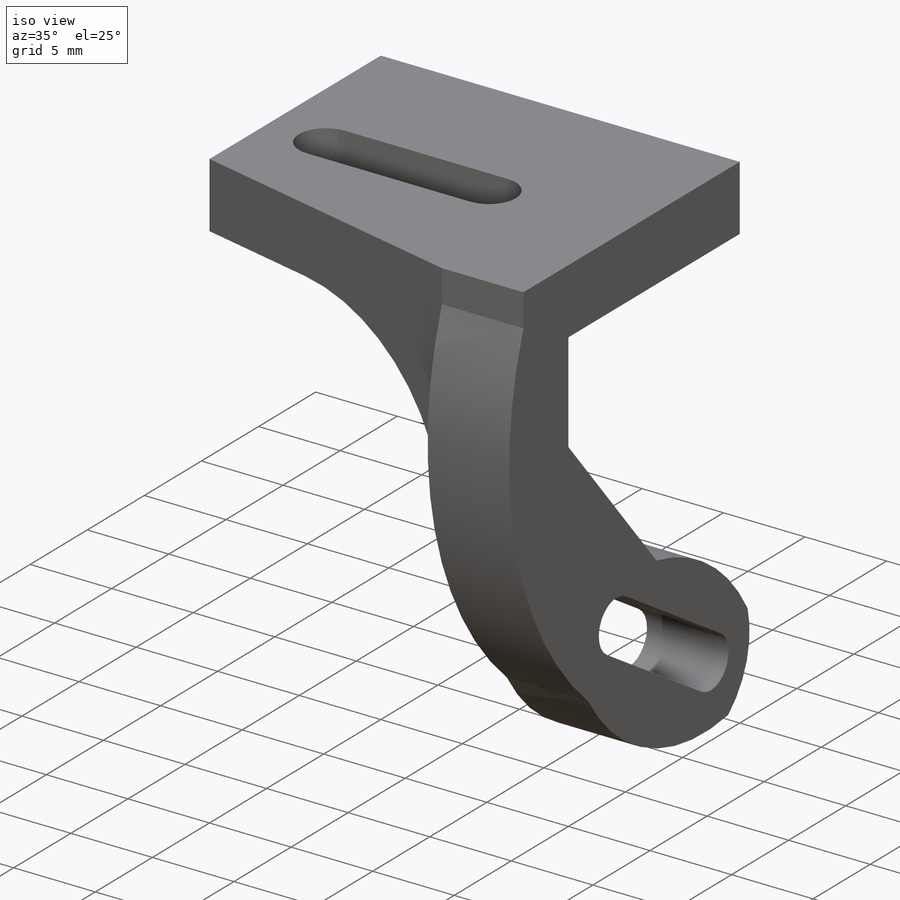
[diagram: iso view]
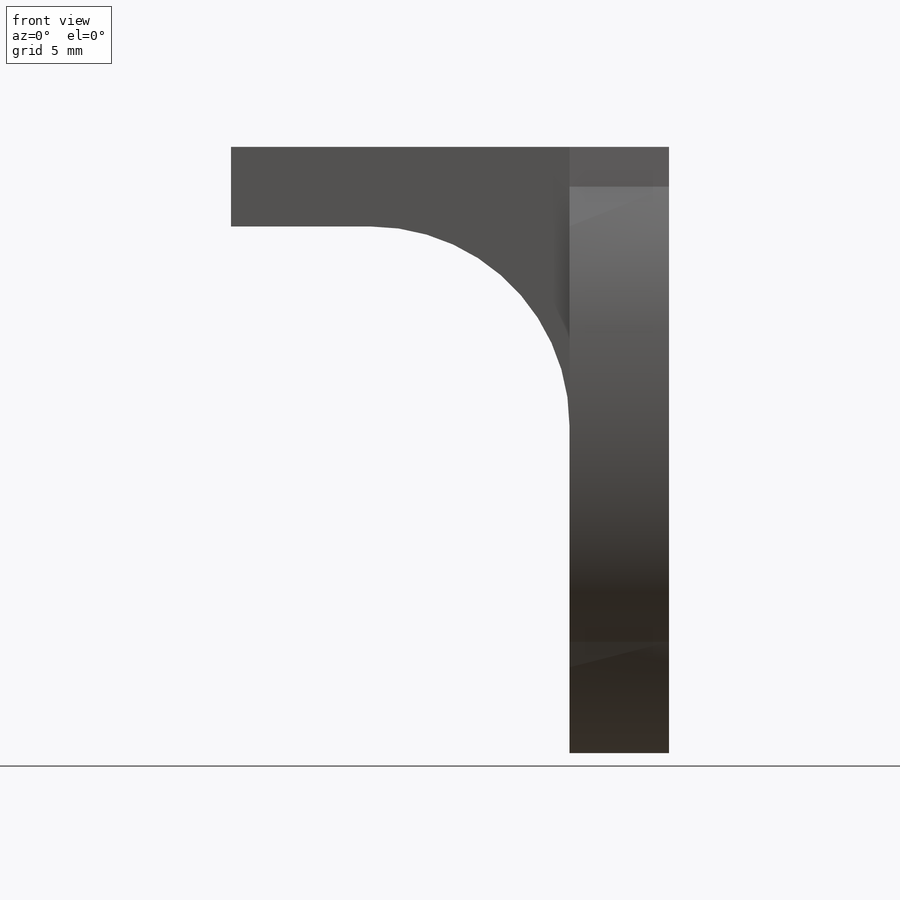
[diagram: front view]
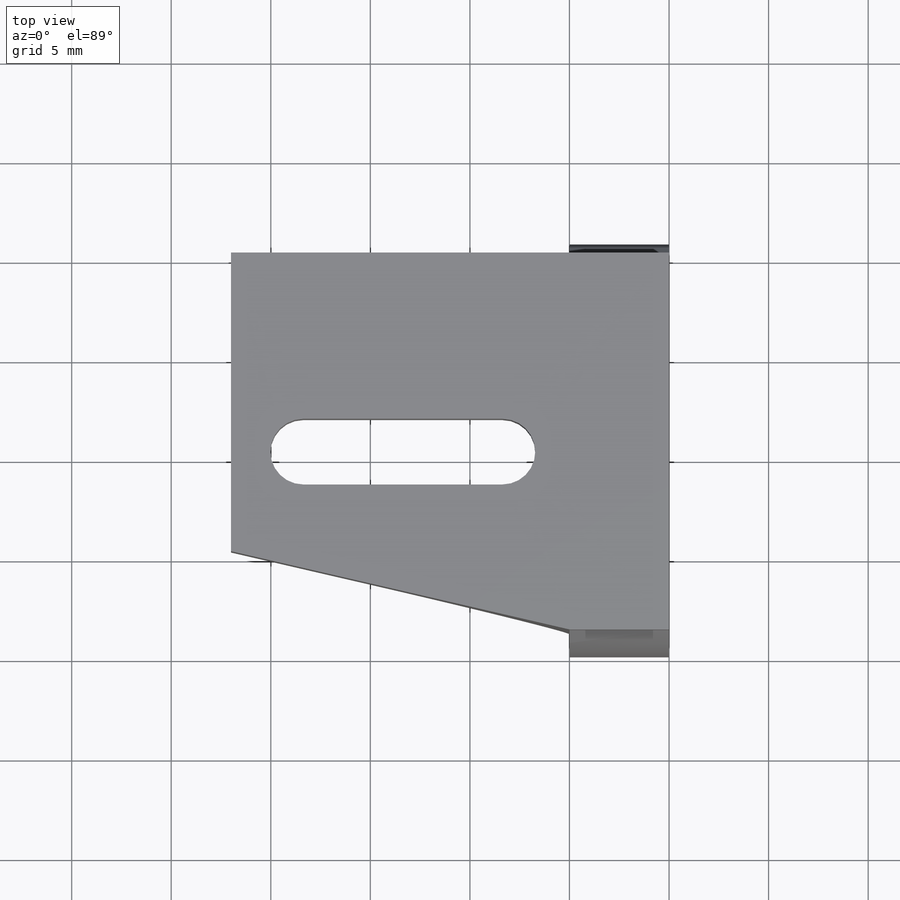
[diagram: top view]
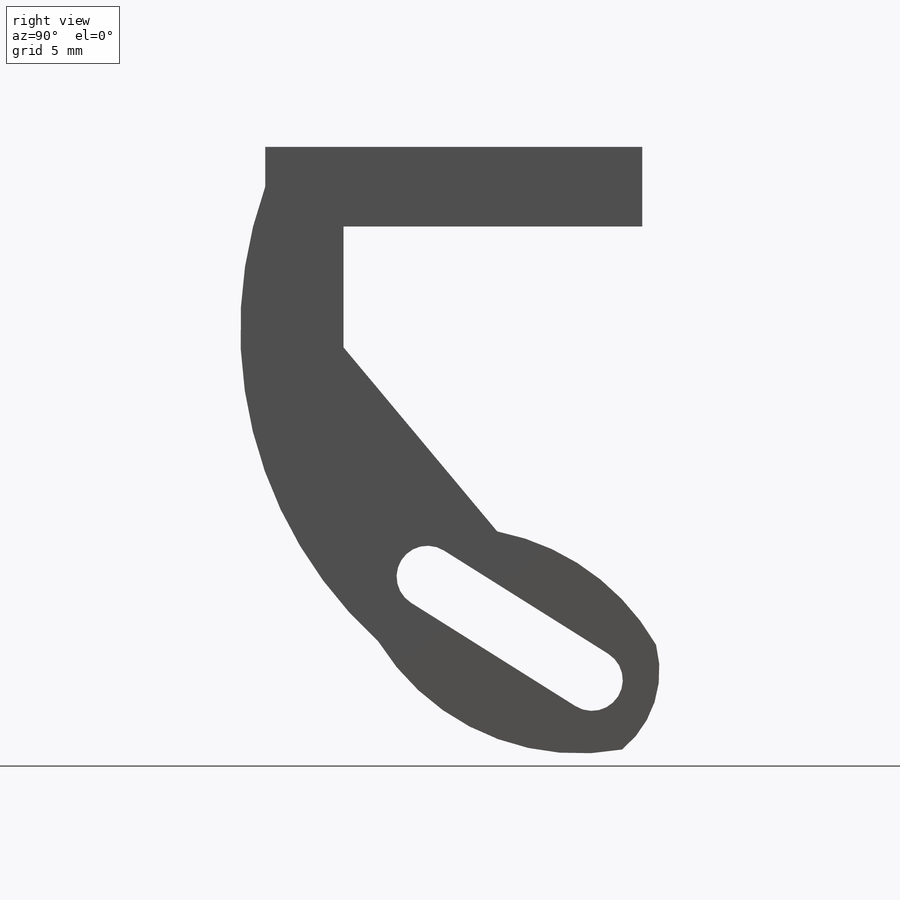
[diagram: right view]
SOLIDWORKS PART (.sldprt)
format: sldprt  version: not decoded by parser v0  size: 203,776 bytes
history: native  units: mm
features: sketch x4, plane x3, extrude x3, material x1, cut_extrude x1, fillet x1 (+10 scaffold rows collapsed)
feature tree (23):
  scaffold x10  (default folders/planes/origin — collapsed)
  material  "Material <nicht angegeben>"
  plane  "Ebene vorne"
  plane  "Ebene oben"
  plane  "Ebene rechts"
  sketch  "Skizze2"  dims[D1=2.0mm]
  extrude  "Aufsatz-Linear austragen1"  Depth=5mm
  sketch  "Skizze3"
  extrude  "Aufsatz-Linear austragen2"  Depth=17mm
  sketch  "Skizze4"  dims[D1=1.6mm]
  cut_extrude  "Schnitt-Linear austragen1"  Depth=5mm
  sketch  "Skizze5"
  extrude  "Aufsatz-Linear austragen3"  [1 undecoded]
  fillet  "Verrundung2"  Radius=10mm
decode coverage: 6 of 9 modeling features carry decoded parameters
note: 1 parameter value undecoded
note: suppression state not decoded; provenance and decode notes live in map.json
